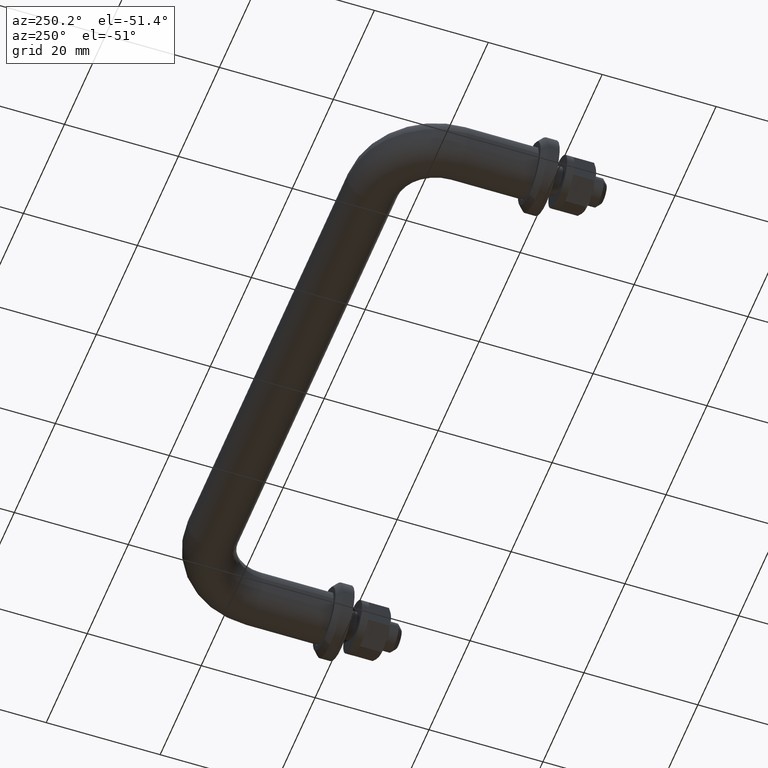
[diagram: clean part render]
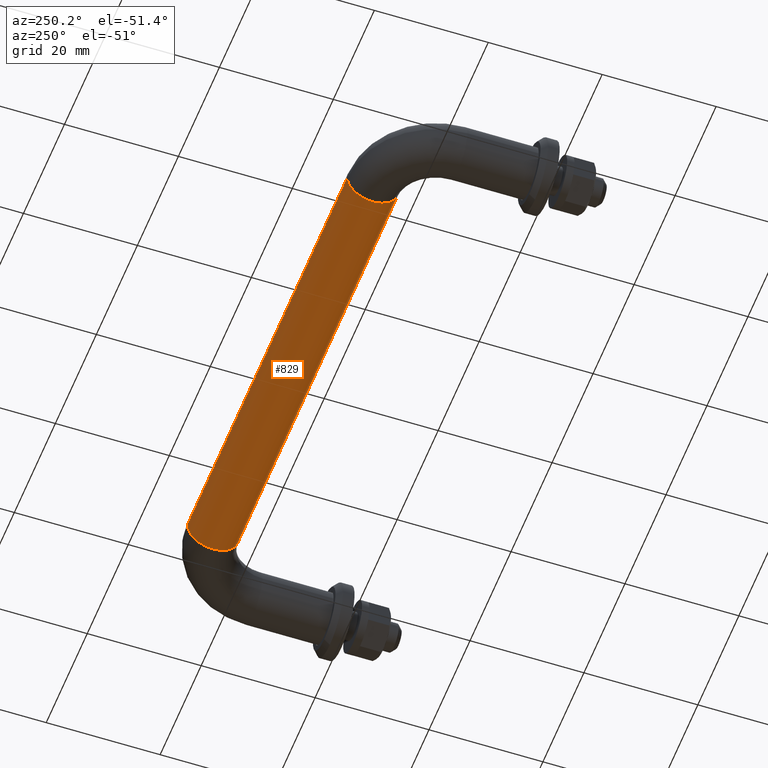
[diagram: same view with one face highlighted and labeled with its STEP entity id]
A machine part, auxiliary view. The second image highlights one B-rep face of the part: STEP entity #829.
In plain terms, the highlighted cylindrical surface (edge-blend (fillet) strip) has radius 4.5 mm, axis along (1, 0, 0).
Its self-contained STEP definition (entity closure, byte-faithful):
#17 = EDGE_CURVE ( 'NONE', #702, #912, #1224, .T. ) ;
#18 = CARTESIAN_POINT ( 'NONE',  ( -38.99999999999999300, 25.50000000000000400, 0.0000000000000000000 ) ) ;
#102 = LINE ( 'NONE', #1047, #466 ) ;
#107 = VERTEX_POINT ( 'NONE', #495 ) ;
#108 = CARTESIAN_POINT ( 'NONE',  ( 39.00000000000002100, 30.00000000000001100, 0.0000000000000000000 ) ) ;
#115 = CYLINDRICAL_SURFACE ( 'NONE', #455, 4.499999999999997300 ) ;
#159 = EDGE_LOOP ( 'NONE', ( #773, #708, #1715, #1385 ) ) ;
#259 = DIRECTION ( 'NONE',  ( 0.0000000000000000000, 0.0000000000000000000, 1.000000000000000000 ) ) ;
#262 = LINE ( 'NONE', #630, #953 ) ;
#313 = EDGE_CURVE ( 'NONE', #107, #912, #102, .T. ) ;
#455 = AXIS2_PLACEMENT_3D ( 'NONE', #18, #1493, #977 ) ;
#466 = VECTOR ( 'NONE', #1036, 1000.000000000000000 ) ;
#495 = CARTESIAN_POINT ( 'NONE',  ( -38.99999999999999300, 30.00000000000000000, 0.0000000000000000000 ) ) ;
#517 = DIRECTION ( 'NONE',  ( 0.0000000000000000000, 0.0000000000000000000, 1.000000000000000000 ) ) ;
#521 = FACE_OUTER_BOUND ( 'NONE', #159, .T. ) ;
#536 = DIRECTION ( 'NONE',  ( 1.000000000000000000, -3.828568698926949400E-016, 0.0000000000000000000 ) ) ;
#630 = CARTESIAN_POINT ( 'NONE',  ( -38.99999999999999300, 21.00000000000000400, 5.510910596163086600E-016 ) ) ;
#651 = CARTESIAN_POINT ( 'NONE',  ( 39.00000000000002100, 25.50000000000001100, 0.0000000000000000000 ) ) ;
#702 = VERTEX_POINT ( 'NONE', #968 ) ;
#708 = ORIENTED_EDGE ( 'NONE', *, *, #1271, .T. ) ;
#773 = ORIENTED_EDGE ( 'NONE', *, *, #1085, .F. ) ;
#829 = ADVANCED_FACE ( 'NONE', ( #521 ), #115, .T. ) ;
#875 = AXIS2_PLACEMENT_3D ( 'NONE', #1262, #536, #259 ) ;
#912 = VERTEX_POINT ( 'NONE', #108 ) ;
#937 = VERTEX_POINT ( 'NONE', #1335 ) ;
#953 = VECTOR ( 'NONE', #1446, 1000.000000000000000 ) ;
#968 = CARTESIAN_POINT ( 'NONE',  ( 39.00000000000002100, 21.00000000000001400, 5.510910596163087600E-016 ) ) ;
#977 = DIRECTION ( 'NONE',  ( 0.0000000000000000000, 1.000000000000000000, 0.0000000000000000000 ) ) ;
#1036 = DIRECTION ( 'NONE',  ( 1.000000000000000000, 1.334402673828312800E-016, 0.0000000000000000000 ) ) ;
#1047 = CARTESIAN_POINT ( 'NONE',  ( -38.99999999999999300, 30.00000000000000000, 0.0000000000000000000 ) ) ;
#1065 = AXIS2_PLACEMENT_3D ( 'NONE', #651, #1332, #517 ) ;
#1085 = EDGE_CURVE ( 'NONE', #937, #702, #262, .T. ) ;
#1224 = CIRCLE ( 'NONE', #1065, 4.499999999999998200 ) ;
#1262 = CARTESIAN_POINT ( 'NONE',  ( -38.99999999999999300, 25.50000000000000400, 0.0000000000000000000 ) ) ;
#1271 = EDGE_CURVE ( 'NONE', #937, #107, #1778, .T. ) ;
#1332 = DIRECTION ( 'NONE',  ( 1.000000000000000000, -3.828568698926949400E-016, 0.0000000000000000000 ) ) ;
#1335 = CARTESIAN_POINT ( 'NONE',  ( -38.99999999999999300, 21.00000000000000400, 5.510910596163096500E-016 ) ) ;
#1385 = ORIENTED_EDGE ( 'NONE', *, *, #17, .F. ) ;
#1446 = DIRECTION ( 'NONE',  ( 1.000000000000000000, 1.334402673828312800E-016, 0.0000000000000000000 ) ) ;
#1493 = DIRECTION ( 'NONE',  ( 1.000000000000000000, 1.334402673828312800E-016, 0.0000000000000000000 ) ) ;
#1715 = ORIENTED_EDGE ( 'NONE', *, *, #313, .T. ) ;
#1778 = CIRCLE ( 'NONE', #875, 4.499999999999998200 ) ;